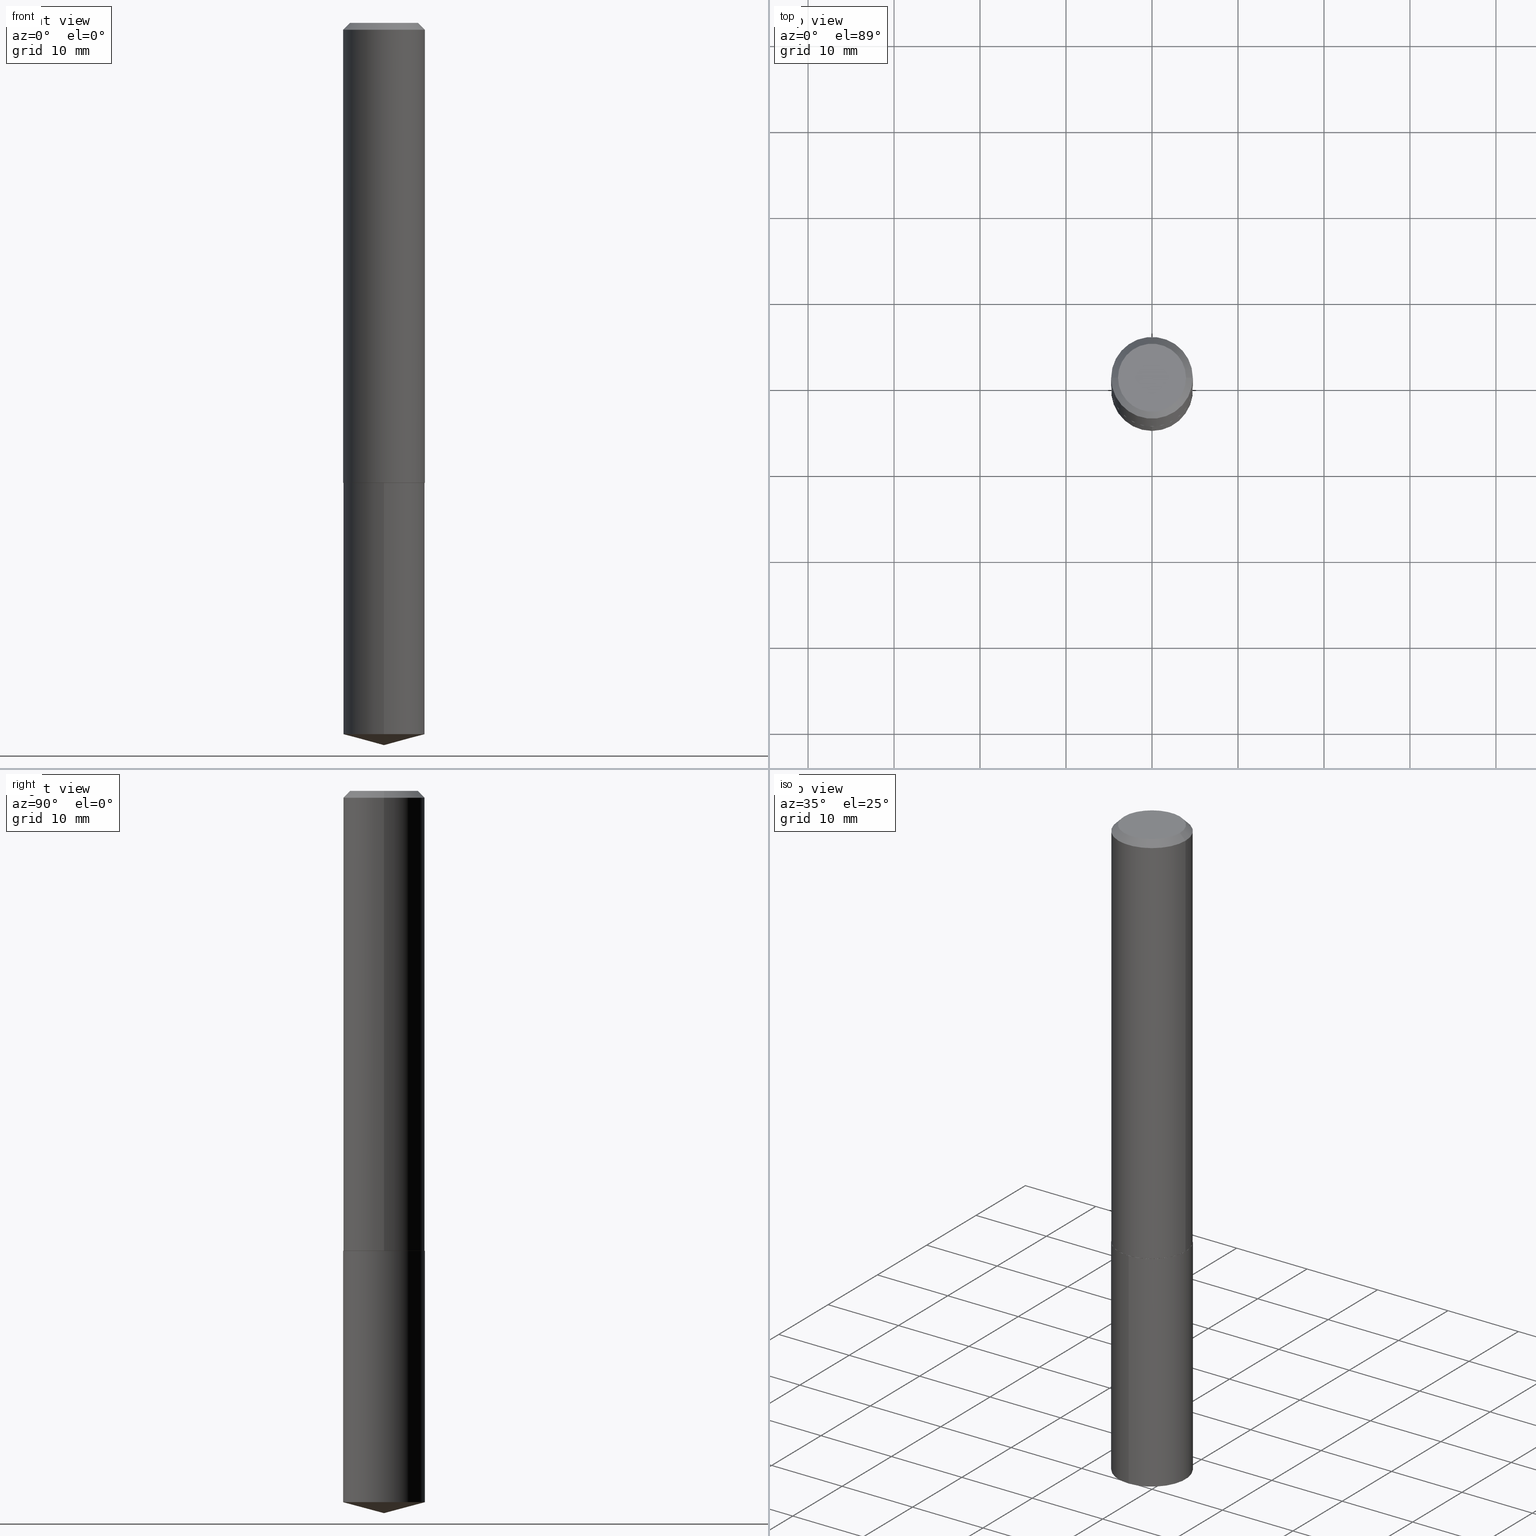
[diagram: canonical four-view strip — front | top / right | iso, engineering-drawing reading convention]
A machine part, canonical four-view strip (front | top / right | iso — engineering-drawing reading convention). The complete STEP part file that produces these views, byte-faithful:
ISO-10303-21;
HEADER;
FILE_DESCRIPTION (( 'STEP AP203' ),
    '1' );
FILE_NAME ('63025.STEP',
    '2024-04-23T07:57:47',
    ( '' ),
    ( '' ),
    'SwSTEP 2.0',
    'SolidWorks 2023',
    '' );
FILE_SCHEMA (( 'CONFIG_CONTROL_DESIGN' ));
ENDSEC;

DATA;
#1 = ORIENTED_EDGE ( 'NONE', *, *, #15, .F. ) ;
#2 = DIRECTION ( 'NONE',  ( -2.445468806185136597E-29, 3.491481338843145583E-15, 1.000000000000000000 ) ) ;
#3 = FACE_OUTER_BOUND ( 'NONE', #171, .T. ) ;
#4 = CARTESIAN_POINT ( 'NONE',  ( 5.150890946467754134E-29, -7.354107144005318601E-15, -2.106300000000000505 ) ) ;
#5 = CIRCLE ( 'NONE', #84, 0.1869999999999999996 ) ;
#6 = APPROVAL_PERSON_ORGANIZATION ( #197, #367, #319 ) ;
#7 = EDGE_CURVE ( 'NONE', #265, #26, #304, .T. ) ;
#8 = CARTESIAN_POINT ( 'NONE',  ( -8.819034608605038246E-28, 1.259139955902573691E-13, 36.06297874015748306 ) ) ;
#9 = CARTESIAN_POINT ( 'NONE',  ( 5.149668212064661332E-29, -7.352361403335897886E-15, -2.105800000000000338 ) ) ;
#10 = DIRECTION ( 'NONE',  ( -2.445468806185136597E-29, 3.491481338843145583E-15, 1.000000000000000000 ) ) ;
#11 = CYLINDRICAL_SURFACE ( 'NONE', #215, 0.1870000000000001383 ) ;
#12 = CONICAL_SURFACE ( 'NONE', #243, 146.9311341562567179, 1.308996938995750092 ) ;
#13 = EDGE_CURVE ( 'NONE', #320, #356, #267, .T. ) ;
#14 =( CONVERSION_BASED_UNIT ( 'INCH', #339 ) LENGTH_UNIT ( ) NAMED_UNIT ( #278 ) );
#15 = EDGE_CURVE ( 'NONE', #320, #315, #5, .T. ) ;
#16 = VECTOR ( 'NONE', #119, 39.37007874015748854 ) ;
#17 = CC_DESIGN_SECURITY_CLASSIFICATION ( #150, ( #31 ) ) ;
#18 = DATE_AND_TIME ( #283, #125 ) ;
#19 = EDGE_LOOP ( 'NONE', ( #29, #349, #233, #21 ) ) ;
#20 = MECHANICAL_CONTEXT ( 'NONE', #190, 'mechanical' ) ;
#21 = ORIENTED_EDGE ( 'NONE', *, *, #88, .F. ) ;
#22 = APPROVAL_PERSON_ORGANIZATION ( #137, #133, #224 ) ;
#23 = EDGE_LOOP ( 'NONE', ( #228, #81, #229, #83 ) ) ;
#24 = CARTESIAN_POINT ( 'NONE',  ( 5.150890946467754134E-29, -7.354107144005318601E-15, -2.106300000000000505 ) ) ;
#25 = DIRECTION ( 'NONE',  ( 2.445468806185136597E-29, -3.491481338843145583E-15, -1.000000000000000000 ) ) ;
#26 = VERTEX_POINT ( 'NONE', #219 ) ;
#27 = APPROVAL_STATUS ( 'not_yet_approved' ) ;
#28 = ADVANCED_FACE ( 'NONE', ( #383 ), #343, .T. ) ;
#29 = ORIENTED_EDGE ( 'NONE', *, *, #357, .T. ) ;
#30 = CIRCLE ( 'NONE', #162, 0.1870000000000002771 ) ;
#31 = PRODUCT_DEFINITION_FORMATION_WITH_SPECIFIED_SOURCE ( 'ANY', '', #170, .NOT_KNOWN. ) ;
#32 = CARTESIAN_POINT ( 'NONE',  ( 5.150890946467754134E-29, -7.354107144005318601E-15, -2.106300000000000505 ) ) ;
#33 = PRODUCT_RELATED_PRODUCT_CATEGORY ( 'detail', '', ( #170 ) ) ;
#34 = ADVANCED_FACE ( 'NONE', ( #209 ), #157, .F. ) ;
#35 = LINE ( 'NONE', #95, #361 ) ;
#36 = CARTESIAN_POINT ( 'NONE',  ( 7.642090019328603538E-31, -1.091087918388490390E-16, -0.03125000000000021511 ) ) ;
#37 = LINE ( 'NONE', #151, #68 ) ;
#38 = AXIS2_PLACEMENT_3D ( 'NONE', #360, #270, #205 ) ;
#39 = LINE ( 'NONE', #152, #256 ) ;
#40 = DIRECTION ( 'NONE',  ( -2.445468806185136597E-29, 3.491481338843145583E-15, 1.000000000000000000 ) ) ;
#41 = APPLICATION_PROTOCOL_DEFINITION ( 'international standard', 'config_control_design', 1994, #190 ) ;
#42 = CONICAL_SURFACE ( 'NONE', #289, 0.1870000000000002771, 0.7853981633977896726 ) ;
#43 = CC_DESIGN_PERSON_AND_ORGANIZATION_ASSIGNMENT ( #381, #253, ( #31 ) ) ;
#44 = CARTESIAN_POINT ( 'NONE',  ( 1.328714915871467217E-15, 0.1869999999999926998, -2.106300000000000949 ) ) ;
#45 = ADVANCED_FACE ( 'NONE', ( #346 ), #145, .T. ) ;
#46 = CARTESIAN_POINT ( 'NONE',  ( -0.1870000000000000551, 1.196705228888483098E-15, -0.03125000000000021511 ) ) ;
#47 = ADVANCED_FACE ( 'NONE', ( #141 ), #259, .T. ) ;
#48 = CARTESIAN_POINT ( 'NONE',  ( -0.1870000000000002771, -6.023646487464508570E-15, -2.105800000000000338 ) ) ;
#49 = AXIS2_PLACEMENT_3D ( 'NONE', #338, #69, #309 ) ;
#50 = VECTOR ( 'NONE', #275, 39.37007874015748143 ) ;
#51 = CALENDAR_DATE ( 2024, 23, 4 ) ;
#52 = ORIENTED_EDGE ( 'NONE', *, *, #302, .T. ) ;
#53 = APPROVAL_DATE_TIME ( #18, #367 ) ;
#54 = CARTESIAN_POINT ( 'NONE',  ( -1.305814020727280331E-15, -0.1870000000000073548, -2.106300000000000061 ) ) ;
#55 = ORIENTED_EDGE ( 'NONE', *, *, #96, .F. ) ;
#56 = VERTEX_POINT ( 'NONE', #79 ) ;
#57 = CIRCLE ( 'NONE', #206, 0.1557499999999999996 ) ;
#58 = AXIS2_PLACEMENT_3D ( 'NONE', #307, #97, #222 ) ;
#59 = VERTEX_POINT ( 'NONE', #54 ) ;
#60 = ADVANCED_FACE ( 'NONE', ( #67 ), #12, .T. ) ;
#61 = COORDINATED_UNIVERSAL_TIME_OFFSET ( 5, 0, .BEHIND. ) ;
#62 = ORIENTED_EDGE ( 'NONE', *, *, #71, .F. ) ;
#63 = DIRECTION ( 'NONE',  ( 1.000000000000000000, -6.982962677686265133E-15, 0.000000000000000000 ) ) ;
#64 = CARTESIAN_POINT ( 'NONE',  ( 7.642090019328603538E-31, -1.091087918388490390E-16, -0.03125000000000021511 ) ) ;
#65 = DIRECTION ( 'NONE',  ( -2.445454567479548311E-29, 3.491501729479964866E-15, 1.000000000000000000 ) ) ;
#66 = CARTESIAN_POINT ( 'NONE',  ( 5.149668212064661332E-29, -7.352361403335897886E-15, -2.105800000000000338 ) ) ;
#67 = FACE_OUTER_BOUND ( 'NONE', #198, .T. ) ;
#68 = VECTOR ( 'NONE', #148, 39.37007874015748143 ) ;
#69 = DIRECTION ( 'NONE',  ( -2.445454567479548311E-29, 3.491501729479964866E-15, 1.000000000000000000 ) ) ;
#70 = EDGE_CURVE ( 'NONE', #382, #265, #235, .T. ) ;
#71 = EDGE_CURVE ( 'NONE', #260, #26, #240, .T. ) ;
#72 = FACE_OUTER_BOUND ( 'NONE', #108, .T. ) ;
#73 = CARTESIAN_POINT ( 'NONE',  ( 7.642090019328603538E-31, -1.091087918388490390E-16, -0.03125000000000021511 ) ) ;
#74 = EDGE_LOOP ( 'NONE', ( #324, #111, #286, #352 ) ) ;
#75 = CARTESIAN_POINT ( 'NONE',  ( -1.305814020727252523E-15, -0.1870000000000114071, -3.256993501015380321 ) ) ;
#76 = DIRECTION ( 'NONE',  ( 1.000000000000000000, 0.000000000000000000, 0.000000000000000000 ) ) ;
#77 = CIRCLE ( 'NONE', #220, 0.1870000000000000551 ) ;
#78 = PERSON_AND_ORGANIZATION ( #223, #322 ) ;
#79 = CARTESIAN_POINT ( 'NONE',  ( -0.1865000000000003322, -6.026295714638618193E-15, -2.106300000000000061 ) ) ;
#80 = ORIENTED_EDGE ( 'NONE', *, *, #180, .T. ) ;
#81 = ORIENTED_EDGE ( 'NONE', *, *, #365, .T. ) ;
#82 = PERSON_AND_ORGANIZATION ( #223, #322 ) ;
#83 = ORIENTED_EDGE ( 'NONE', *, *, #70, .F. ) ;
#84 = AXIS2_PLACEMENT_3D ( 'NONE', #334, #362, #92 ) ;
#85 = DATE_AND_TIME ( #261, #189 ) ;
#86 = ORIENTED_EDGE ( 'NONE', *, *, #325, .F. ) ;
#87 = EDGE_CURVE ( 'NONE', #290, #265, #30, .T. ) ;
#88 = EDGE_CURVE ( 'NONE', #315, #59, #39, .T. ) ;
#89 = PLANE ( 'NONE',  #38 ) ;
#90 = DIRECTION ( 'NONE',  ( 1.000000000000000000, -6.982962677686265133E-15, 0.000000000000000000 ) ) ;
#91 = CARTESIAN_POINT ( 'NONE',  ( -0.1870000000000002771, -6.023646487464508570E-15, -2.105800000000000338 ) ) ;
#92 = DIRECTION ( 'NONE',  ( -6.982962677686266711E-15, -1.000000000000000000, 2.921762560068730595E-15 ) ) ;
#93 = CARTESIAN_POINT ( 'NONE',  ( 5.150890946467754134E-29, -7.354107144005318601E-15, -2.106300000000000505 ) ) ;
#94 = DIRECTION ( 'NONE',  ( -6.982962677686265922E-15, -1.000000000000000000, 3.510303681827599807E-15 ) ) ;
#95 = CARTESIAN_POINT ( 'NONE',  ( 8.087362800111613927E-29, -1.154674536956319132E-14, -3.307100000000000151 ) ) ;
#96 = EDGE_CURVE ( 'NONE', #56, #382, #183, .T. ) ;
#97 = DIRECTION ( 'NONE',  ( -2.445454567479548311E-29, 3.491501729479964866E-15, 1.000000000000000000 ) ) ;
#98 = CARTESIAN_POINT ( 'NONE',  ( 1.328714915871467019E-15, 0.1869999999999886753, -3.256993501015381653 ) ) ;
#99 = LINE ( 'NONE', #46, #167 ) ;
#100 = DIRECTION ( 'NONE',  ( -2.445468806185136597E-29, 3.491481338843145583E-15, 1.000000000000000000 ) ) ;
#101 = FACE_OUTER_BOUND ( 'NONE', #19, .T. ) ;
#102 = APPROVAL_DATE_TIME ( #85, #122 ) ;
#103 = COORDINATED_UNIVERSAL_TIME_OFFSET ( 5, 0, .BEHIND. ) ;
#104 = CIRCLE ( 'NONE', #231, 0.1557499999999999996 ) ;
#105 = ORIENTED_EDGE ( 'NONE', *, *, #87, .T. ) ;
#106 = EDGE_CURVE ( 'NONE', #385, #320, #37, .T. ) ;
#107 = PERSON_AND_ORGANIZATION ( #223, #322 ) ;
#108 = EDGE_LOOP ( 'NONE', ( #258, #130, #199, #166 ) ) ;
#109 = SHAPE_DEFINITION_REPRESENTATION ( #249, #386 ) ;
#110 = ORIENTED_EDGE ( 'NONE', *, *, #182, .T. ) ;
#111 = ORIENTED_EDGE ( 'NONE', *, *, #15, .T. ) ;
#112 = AXIS2_PLACEMENT_3D ( 'NONE', #64, #239, #177 ) ;
#113 = ORIENTED_EDGE ( 'NONE', *, *, #302, .F. ) ;
#114 = DIRECTION ( 'NONE',  ( -6.982962677686266711E-15, -1.000000000000000000, 2.921762560068730595E-15 ) ) ;
#115 = DIRECTION ( 'NONE',  ( -2.445468806185136877E-29, 3.491481338843145188E-15, 1.000000000000000000 ) ) ;
#116 = CARTESIAN_POINT ( 'NONE',  ( 1.328714915871438620E-15, 0.1869999999999926721, -2.106300000000000949 ) ) ;
#117 =( GEOMETRIC_REPRESENTATION_CONTEXT ( 3 ) GLOBAL_UNCERTAINTY_ASSIGNED_CONTEXT ( ( #158 ) ) GLOBAL_UNIT_ASSIGNED_CONTEXT ( ( #14, #281, #218 ) ) REPRESENTATION_CONTEXT ( 'NONE', 'WORKASPACE' ) );
#118 = DIRECTION ( 'NONE',  ( -2.445468806185136597E-29, 3.491481338843145583E-15, 1.000000000000000000 ) ) ;
#119 = DIRECTION ( 'NONE',  ( 0.7071067811865455743, -7.319954787623248157E-15, -0.7071067811865493491 ) ) ;
#120 = ADVANCED_FACE ( 'NONE', ( #272 ), #135, .T. ) ;
#121 = DIRECTION ( 'NONE',  ( -2.445454567479548311E-29, 3.491501729479964866E-15, 1.000000000000000000 ) ) ;
#122 = APPROVAL ( #134, 'UNSPECIFIED' ) ;
#123 = AXIS2_PLACEMENT_3D ( 'NONE', #8, #121, #94 ) ;
#124 = DIRECTION ( 'NONE',  ( -2.445468806185136597E-29, 3.491481338843145583E-15, 1.000000000000000000 ) ) ;
#125 = LOCAL_TIME ( 3, 57, 47.00000000000000000, #103 ) ;
#126 = FACE_OUTER_BOUND ( 'NONE', #355, .T. ) ;
#127 = DESIGN_CONTEXT ( 'detailed design', #211, 'design' ) ;
#128 = LINE ( 'NONE', #48, #50 ) ;
#129 = CARTESIAN_POINT ( 'NONE',  ( 5.149668212064661332E-29, -7.352361403335897886E-15, -2.105800000000000338 ) ) ;
#130 = ORIENTED_EDGE ( 'NONE', *, *, #96, .T. ) ;
#131 = DATE_AND_TIME ( #326, #163 ) ;
#132 = EDGE_LOOP ( 'NONE', ( #226, #80 ) ) ;
#133 = APPROVAL ( #27, 'UNSPECIFIED' ) ;
#134 = APPROVAL_STATUS ( 'not_yet_approved' ) ;
#135 = CONICAL_SURFACE ( 'NONE', #123, 146.9311341562567179, 1.308996938995750092 ) ;
#136 = ORIENTED_EDGE ( 'NONE', *, *, #212, .T. ) ;
#137 = PERSON_AND_ORGANIZATION ( #223, #322 ) ;
#138 = ORIENTED_EDGE ( 'NONE', *, *, #71, .T. ) ;
#139 = EDGE_CURVE ( 'NONE', #356, #59, #175, .T. ) ;
#140 = CALENDAR_DATE ( 2024, 23, 4 ) ;
#141 = FACE_OUTER_BOUND ( 'NONE', #201, .T. ) ;
#142 = ORIENTED_EDGE ( 'NONE', *, *, #351, .T. ) ;
#143 = DATE_AND_TIME ( #51, #195 ) ;
#144 = ORIENTED_EDGE ( 'NONE', *, *, #344, .F. ) ;
#145 = CONICAL_SURFACE ( 'NONE', #380, 0.1870000000000000551, 0.7853981633974456145 ) ;
#146 = DIRECTION ( 'NONE',  ( -2.445454567479548311E-29, 3.491501729479964866E-15, 1.000000000000000000 ) ) ;
#147 = CARTESIAN_POINT ( 'NONE',  ( -0.1870000000000001383, 1.328714915871388330E-15, -9.198408618776680107E-30 ) ) ;
#148 = DIRECTION ( 'NONE',  ( 6.863315791527696626E-15, 0.9659258262890699775, 0.2588190451025145777 ) ) ;
#149 = VECTOR ( 'NONE', #269, 39.37007874015748143 ) ;
#150 = SECURITY_CLASSIFICATION ( '', '', #200 ) ;
#151 = CARTESIAN_POINT ( 'NONE',  ( 8.087423308053859234E-29, -1.154665947196652675E-14, -3.307100000000000151 ) ) ;
#152 = CARTESIAN_POINT ( 'NONE',  ( -1.305814020727280331E-15, -0.1870000000000073548, -2.106300000000000061 ) ) ;
#153 = CYLINDRICAL_SURFACE ( 'NONE', #49, 0.1869999999999999996 ) ;
#154 = AXIS2_PLACEMENT_3D ( 'NONE', #66, #40, #247 ) ;
#155 = DIRECTION ( 'NONE',  ( -2.445468806185136597E-29, 3.491481338843145583E-15, 1.000000000000000000 ) ) ;
#156 = DIRECTION ( 'NONE',  ( -2.445468806185136597E-29, 3.491481338843145583E-15, 1.000000000000000000 ) ) ;
#157 = PLANE ( 'NONE',  #238 ) ;
#158 = UNCERTAINTY_MEASURE_WITH_UNIT (LENGTH_MEASURE( 1.000000000000000082E-05 ), #14, 'distance_accuracy_value', 'NONE');
#159 = DIRECTION ( 'NONE',  ( 2.438088387897960049E-29, -3.491481338843145188E-15, -1.000000000000000000 ) ) ;
#160 = ORIENTED_EDGE ( 'NONE', *, *, #182, .F. ) ;
#161 = CLOSED_SHELL ( 'NONE', ( #308, #60, #120, #291, #34 ) ) ;
#162 = AXIS2_PLACEMENT_3D ( 'NONE', #181, #366, #63 ) ;
#163 = LOCAL_TIME ( 3, 57, 47.00000000000000000, #321 ) ;
#164 = DATE_TIME_ROLE ( 'creation_date' ) ;
#165 = ORIENTED_EDGE ( 'NONE', *, *, #306, .T. ) ;
#166 = ORIENTED_EDGE ( 'NONE', *, *, #87, .F. ) ;
#167 = VECTOR ( 'NONE', #216, 39.37007874015748854 ) ;
#168 = ORIENTED_EDGE ( 'NONE', *, *, #285, .F. ) ;
#169 = APPROVAL_PERSON_ORGANIZATION ( #78, #122, #342 ) ;
#170 = PRODUCT ( '63025', '63025', '', ( #20 ) ) ;
#171 = EDGE_LOOP ( 'NONE', ( #62, #86, #288, #142 ) ) ;
#172 = PERSON_AND_ORGANIZATION_ROLE ( 'classification_officer' ) ;
#173 = ORIENTED_EDGE ( 'NONE', *, *, #180, .F. ) ;
#174 = CARTESIAN_POINT ( 'NONE',  ( 5.150890946467754134E-29, -7.354107144005317023E-15, -2.106300000000000061 ) ) ;
#175 = CIRCLE ( 'NONE', #225, 0.1869999999999999996 ) ;
#176 = CIRCLE ( 'NONE', #58, 0.1869999999999999996 ) ;
#177 = DIRECTION ( 'NONE',  ( -1.000000000000000000, 6.982962677686266711E-15, 0.000000000000000000 ) ) ;
#178 = CC_DESIGN_DATE_AND_TIME_ASSIGNMENT ( #143, #164, ( #263 ) ) ;
#179 = DIRECTION ( 'NONE',  ( -6.982962677686266711E-15, -1.000000000000000000, 2.921762560068730595E-15 ) ) ;
#180 = EDGE_CURVE ( 'NONE', #260, #232, #104, .T. ) ;
#181 = CARTESIAN_POINT ( 'NONE',  ( 5.149668212064661332E-29, -7.352361403335897886E-15, -2.105800000000000338 ) ) ;
#182 = EDGE_CURVE ( 'NONE', #385, #315, #35, .T. ) ;
#183 = CIRCLE ( 'NONE', #194, 0.1865000000000003322 ) ;
#184 = CC_DESIGN_APPROVAL ( #133, ( #150 ) ) ;
#185 = CARTESIAN_POINT ( 'NONE',  ( 0.1870000000000002771, -8.658175424063231465E-15, -2.105800000000000338 ) ) ;
#186 = DIRECTION ( 'NONE',  ( 1.000000000000000000, -6.982962677686266711E-15, 0.000000000000000000 ) ) ;
#187 = AXIS2_PLACEMENT_3D ( 'NONE', #32, #146, #266 ) ;
#188 = DIRECTION ( 'NONE',  ( -1.000000000000000000, 6.982962677686265922E-15, -4.876176775795935793E-29 ) ) ;
#189 = LOCAL_TIME ( 3, 57, 47.00000000000000000, #292 ) ;
#190 = APPLICATION_CONTEXT ( 'configuration controlled 3d designs of mechanical parts and assemblies' ) ;
#191 = FACE_OUTER_BOUND ( 'NONE', #132, .T. ) ;
#192 = PLANE ( 'NONE',  #297 ) ;
#193 = PERSON_AND_ORGANIZATION_ROLE ( 'design_owner' ) ;
#194 = AXIS2_PLACEMENT_3D ( 'NONE', #174, #2, #210 ) ;
#195 = LOCAL_TIME ( 3, 57, 47.00000000000000000, #202 ) ;
#196 = ORIENTED_EDGE ( 'NONE', *, *, #374, .F. ) ;
#197 = PERSON_AND_ORGANIZATION ( #223, #322 ) ;
#198 = EDGE_LOOP ( 'NONE', ( #160, #254, #295 ) ) ;
#199 = ORIENTED_EDGE ( 'NONE', *, *, #70, .T. ) ;
#200 = SECURITY_CLASSIFICATION_LEVEL ( 'unclassified' ) ;
#201 = EDGE_LOOP ( 'NONE', ( #168, #105, #279, #257 ) ) ;
#202 = COORDINATED_UNIVERSAL_TIME_OFFSET ( 5, 0, .BEHIND. ) ;
#203 = VERTEX_POINT ( 'NONE', #296 ) ;
#204 = CC_DESIGN_PERSON_AND_ORGANIZATION_ASSIGNMENT ( #227, #255, ( #263 ) ) ;
#205 = DIRECTION ( 'NONE',  ( 1.000000000000000000, -6.982962677686265922E-15, 4.876176775795935793E-29 ) ) ;
#206 = AXIS2_PLACEMENT_3D ( 'NONE', #277, #250, #370 ) ;
#207 = CC_DESIGN_APPROVAL ( #122, ( #263 ) ) ;
#208 = FACE_OUTER_BOUND ( 'NONE', #74, .T. ) ;
#209 = FACE_OUTER_BOUND ( 'NONE', #293, .T. ) ;
#210 = DIRECTION ( 'NONE',  ( 1.000000000000000000, -6.982962677686265922E-15, 0.000000000000000000 ) ) ;
#211 = APPLICATION_CONTEXT ( 'configuration controlled 3d designs of mechanical parts and assemblies' ) ;
#212 = EDGE_CURVE ( 'NONE', #59, #356, #248, .T. ) ;
#213 = DIRECTION ( 'NONE',  ( -2.445454567479548311E-29, 3.491501729479964866E-15, 1.000000000000000000 ) ) ;
#214 = AXIS2_PLACEMENT_3D ( 'NONE', #93, #65, #179 ) ;
#215 = AXIS2_PLACEMENT_3D ( 'NONE', #252, #156, #373 ) ;
#216 = DIRECTION ( 'NONE',  ( -0.7071067811865455743, 2.468850131082236945E-15, -0.7071067811865493491 ) ) ;
#217 = CARTESIAN_POINT ( 'NONE',  ( 5.150890946467754134E-29, -7.354107144005317023E-15, -2.106300000000000061 ) ) ;
#218 =( NAMED_UNIT ( * ) SI_UNIT ( $, .STERADIAN. ) SOLID_ANGLE_UNIT ( ) );
#219 = CARTESIAN_POINT ( 'NONE',  ( 0.1870000000000000551, -1.414922812566181102E-15, -0.03125000000000021511 ) ) ;
#220 = AXIS2_PLACEMENT_3D ( 'NONE', #73, #372, #186 ) ;
#221 = AXIS2_PLACEMENT_3D ( 'NONE', #9, #100, #90 ) ;
#222 = DIRECTION ( 'NONE',  ( -6.982962677686266711E-15, -1.000000000000000000, 2.921762560068730595E-15 ) ) ;
#223 = PERSON ( 'UNSPECIFIED', 'UNSPECIFIED', 'UNSPECIFIED', ('UNSPECIFIED'), ('UNSPECIFIED'), ('UNSPECIFIED') ) ;
#224 = APPROVAL_ROLE ( '' ) ;
#225 = AXIS2_PLACEMENT_3D ( 'NONE', #4, #213, #114 ) ;
#226 = ORIENTED_EDGE ( 'NONE', *, *, #325, .T. ) ;
#227 = PERSON_AND_ORGANIZATION ( #223, #322 ) ;
#228 = ORIENTED_EDGE ( 'NONE', *, *, #374, .T. ) ;
#229 = ORIENTED_EDGE ( 'NONE', *, *, #306, .F. ) ;
#230 = DIRECTION ( 'NONE',  ( 0.000000000000000000, 0.000000000000000000, 1.000000000000000000 ) ) ;
#231 = AXIS2_PLACEMENT_3D ( 'NONE', #273, #10, #242 ) ;
#232 = VERTEX_POINT ( 'NONE', #358 ) ;
#233 = ORIENTED_EDGE ( 'NONE', *, *, #212, .F. ) ;
#234 = CC_DESIGN_DATE_AND_TIME_ASSIGNMENT ( #131, #377, ( #150 ) ) ;
#235 = LINE ( 'NONE', #185, #337 ) ;
#236 = FACE_OUTER_BOUND ( 'NONE', #379, .T. ) ;
#237 = DIRECTION ( 'NONE',  ( -2.445454567479548591E-29, 3.491501729479964471E-15, 1.000000000000000000 ) ) ;
#238 = AXIS2_PLACEMENT_3D ( 'NONE', #24, #305, #311 ) ;
#239 = DIRECTION ( 'NONE',  ( 2.445468806185136597E-29, -3.491481338843145583E-15, -1.000000000000000000 ) ) ;
#240 = LINE ( 'NONE', #299, #16 ) ;
#241 = MANIFOLD_SOLID_BREP ( 'Body-Move/Copy2[1]', #161 ) ;
#242 = DIRECTION ( 'NONE',  ( 1.000000000000000000, -6.982962677686265922E-15, 4.876150422495883236E-29 ) ) ;
#243 = AXIS2_PLACEMENT_3D ( 'NONE', #336, #368, #328 ) ;
#244 = CARTESIAN_POINT ( 'NONE',  ( -8.834764860432524555E-48, 1.261370276539608758E-33, 3.612708057484696673E-19 ) ) ;
#245 = ADVANCED_FACE ( 'NONE', ( #236 ), #89, .F. ) ;
#246 = CARTESIAN_POINT ( 'NONE',  ( 8.087362800111615048E-29, -1.154674536956319132E-14, -3.307100000000000151 ) ) ;
#247 = DIRECTION ( 'NONE',  ( 1.000000000000000000, -6.982962677686265133E-15, 0.000000000000000000 ) ) ;
#248 = CIRCLE ( 'NONE', #187, 0.1869999999999999996 ) ;
#249 = PRODUCT_DEFINITION_SHAPE ( 'NONE', 'NONE',  #263 ) ;
#250 = DIRECTION ( 'NONE',  ( -2.445468806185136597E-29, 3.491481338843145583E-15, 1.000000000000000000 ) ) ;
#251 = CC_DESIGN_PERSON_AND_ORGANIZATION_ASSIGNMENT ( #294, #193, ( #170 ) ) ;
#252 = CARTESIAN_POINT ( 'NONE',  ( 0.000000000000000000, 0.000000000000000000, 0.000000000000000000 ) ) ;
#253 = PERSON_AND_ORGANIZATION_ROLE ( 'creator' ) ;
#254 = ORIENTED_EDGE ( 'NONE', *, *, #106, .T. ) ;
#255 = PERSON_AND_ORGANIZATION_ROLE ( 'creator' ) ;
#256 = VECTOR ( 'NONE', #300, 39.37007874015748143 ) ;
#257 = ORIENTED_EDGE ( 'NONE', *, *, #351, .F. ) ;
#258 = ORIENTED_EDGE ( 'NONE', *, *, #365, .F. ) ;
#259 = CYLINDRICAL_SURFACE ( 'NONE', #371, 0.1870000000000001383 ) ;
#260 = VERTEX_POINT ( 'NONE', #268 ) ;
#261 = CALENDAR_DATE ( 2024, 23, 4 ) ;
#262 = VECTOR ( 'NONE', #237, 39.37007874015748143 ) ;
#263 = PRODUCT_DEFINITION ( 'UNKNOWN', '', #31, #127 ) ;
#264 = CIRCLE ( 'NONE', #340, 0.1865000000000003322 ) ;
#265 = VERTEX_POINT ( 'NONE', #330 ) ;
#266 = DIRECTION ( 'NONE',  ( -6.982962677686266711E-15, -1.000000000000000000, 2.921762560068730595E-15 ) ) ;
#267 = LINE ( 'NONE', #116, #262 ) ;
#268 = CARTESIAN_POINT ( 'NONE',  ( 0.1557499999999999996, -1.230272240287521027E-15, 7.225416115050436478E-19 ) ) ;
#269 = DIRECTION ( 'NONE',  ( -2.445468806185136877E-29, 3.491481338843145188E-15, 1.000000000000000000 ) ) ;
#270 = DIRECTION ( 'NONE',  ( -2.438088387897960049E-29, 3.491481338843145188E-15, 1.000000000000000000 ) ) ;
#271 = AXIS2_PLACEMENT_3D ( 'NONE', #314, #230, #76 ) ;
#272 = FACE_OUTER_BOUND ( 'NONE', #327, .T. ) ;
#273 = CARTESIAN_POINT ( 'NONE',  ( -1.766952972086504911E-47, 2.522740553079217515E-33, 7.225416114969393346E-19 ) ) ;
#274 = ADVANCED_FACE ( 'NONE', ( #3 ), #301, .T. ) ;
#275 = DIRECTION ( 'NONE',  ( -0.7071067811867889352, 7.493145998871226640E-15, 0.7071067811863060992 ) ) ;
#276 = CIRCLE ( 'NONE', #389, 0.1870000000000000551 ) ;
#277 = CARTESIAN_POINT ( 'NONE',  ( -1.766952972086504911E-47, 2.522740553079217515E-33, 7.225416114969393346E-19 ) ) ;
#278 = DIMENSIONAL_EXPONENTS ( 1.000000000000000000, 0.000000000000000000, 0.000000000000000000, 0.000000000000000000, 0.000000000000000000, 0.000000000000000000, 0.000000000000000000 ) ;
#279 = ORIENTED_EDGE ( 'NONE', *, *, #7, .T. ) ;
#280 = VECTOR ( 'NONE', #115, 39.37007874015748143 ) ;
#281 =( NAMED_UNIT ( * ) PLANE_ANGLE_UNIT ( ) SI_UNIT ( $, .RADIAN. ) );
#282 = EDGE_LOOP ( 'NONE', ( #173, #138, #52, #144 ) ) ;
#283 = CALENDAR_DATE ( 2024, 23, 4 ) ;
#284 = DIRECTION ( 'NONE',  ( -2.445468806185136597E-29, 3.491481338843145583E-15, 1.000000000000000000 ) ) ;
#285 = EDGE_CURVE ( 'NONE', #290, #203, #298, .T. ) ;
#286 = ORIENTED_EDGE ( 'NONE', *, *, #88, .T. ) ;
#287 = CC_DESIGN_PERSON_AND_ORGANIZATION_ASSIGNMENT ( #107, #172, ( #150 ) ) ;
#288 = ORIENTED_EDGE ( 'NONE', *, *, #344, .T. ) ;
#289 = AXIS2_PLACEMENT_3D ( 'NONE', #129, #155, #312 ) ;
#290 = VERTEX_POINT ( 'NONE', #91 ) ;
#291 = ADVANCED_FACE ( 'NONE', ( #208 ), #332, .T. ) ;
#292 = COORDINATED_UNIVERSAL_TIME_OFFSET ( 5, 0, .BEHIND. ) ;
#293 = EDGE_LOOP ( 'NONE', ( #136, #347 ) ) ;
#294 = PERSON_AND_ORGANIZATION ( #223, #322 ) ;
#295 = ORIENTED_EDGE ( 'NONE', *, *, #357, .F. ) ;
#296 = CARTESIAN_POINT ( 'NONE',  ( -0.1870000000000000551, -2.402020181715984177E-15, -0.03125000000000021511 ) ) ;
#297 = AXIS2_PLACEMENT_3D ( 'NONE', #244, #159, #188 ) ;
#298 = LINE ( 'NONE', #147, #280 ) ;
#299 = CARTESIAN_POINT ( 'NONE',  ( 0.1870000000000000551, -1.392021917422125758E-15, -0.03125000000000021511 ) ) ;
#300 = DIRECTION ( 'NONE',  ( -2.445454567479548591E-29, 3.491501729479964471E-15, 1.000000000000000000 ) ) ;
#301 = CONICAL_SURFACE ( 'NONE', #112, 0.1870000000000000551, 0.7853981633974456145 ) ;
#302 = EDGE_CURVE ( 'NONE', #26, #203, #276, .T. ) ;
#303 = DIRECTION ( 'NONE',  ( 0.7071067811867889352, -2.468850131084785360E-15, 0.7071067811863060992 ) ) ;
#304 = LINE ( 'NONE', #329, #149 ) ;
#305 = DIRECTION ( 'NONE',  ( 2.445454567479548311E-29, -3.491501729479964471E-15, -1.000000000000000000 ) ) ;
#306 = EDGE_CURVE ( 'NONE', #265, #290, #331, .T. ) ;
#307 = CARTESIAN_POINT ( 'NONE',  ( 7.964859624294848919E-29, -1.137175549290187458E-14, -3.256993501015380765 ) ) ;
#308 = ADVANCED_FACE ( 'NONE', ( #101 ), #153, .T. ) ;
#309 = DIRECTION ( 'NONE',  ( -6.982962677686266711E-15, -1.000000000000000000, 2.921762560068730595E-15 ) ) ;
#310 = CARTESIAN_POINT ( 'NONE',  ( 0.1865000000000003322, -8.656429683393809173E-15, -2.106300000000000061 ) ) ;
#311 = DIRECTION ( 'NONE',  ( 6.982962677686265922E-15, 1.000000000000000000, -3.491501729479964471E-15 ) ) ;
#312 = DIRECTION ( 'NONE',  ( 1.000000000000000000, -6.982962677686265133E-15, 0.000000000000000000 ) ) ;
#313 = CC_DESIGN_APPROVAL ( #367, ( #31 ) ) ;
#314 = CARTESIAN_POINT ( 'NONE',  ( 0.000000000000000000, 0.000000000000000000, 0.000000000000000000 ) ) ;
#315 = VERTEX_POINT ( 'NONE', #75 ) ;
#316 = APPROVAL_DATE_TIME ( #345, #133 ) ;
#317 = ADVANCED_FACE ( 'NONE', ( #72 ), #42, .T. ) ;
#318 = ORIENTED_EDGE ( 'NONE', *, *, #7, .F. ) ;
#319 = APPROVAL_ROLE ( '' ) ;
#320 = VERTEX_POINT ( 'NONE', #98 ) ;
#321 = COORDINATED_UNIVERSAL_TIME_OFFSET ( 5, 0, .BEHIND. ) ;
#322 = ORGANIZATION ( 'UNSPECIFIED', 'UNSPECIFIED', '' ) ;
#323 = CARTESIAN_POINT ( 'NONE',  ( 7.642090019328603538E-31, -1.091087918388490390E-16, -0.03125000000000021511 ) ) ;
#324 = ORIENTED_EDGE ( 'NONE', *, *, #13, .F. ) ;
#325 = EDGE_CURVE ( 'NONE', #232, #260, #57, .T. ) ;
#326 = CALENDAR_DATE ( 2024, 23, 4 ) ;
#327 = EDGE_LOOP ( 'NONE', ( #375, #110, #1 ) ) ;
#328 = DIRECTION ( 'NONE',  ( -6.982962677686265922E-15, -1.000000000000000000, 3.510303681827599807E-15 ) ) ;
#329 = CARTESIAN_POINT ( 'NONE',  ( 0.1870000000000001383, -1.305814020727332790E-15, 9.118450570738406715E-30 ) ) ;
#330 = CARTESIAN_POINT ( 'NONE',  ( 0.1870000000000002771, -8.658175424063231465E-15, -2.105800000000000338 ) ) ;
#331 = CIRCLE ( 'NONE', #154, 0.1870000000000002771 ) ;
#332 = CYLINDRICAL_SURFACE ( 'NONE', #214, 0.1869999999999999996 ) ;
#333 = DIRECTION ( 'NONE',  ( 1.000000000000000000, -6.982962677686266711E-15, 0.000000000000000000 ) ) ;
#334 = CARTESIAN_POINT ( 'NONE',  ( 7.964859624294848919E-29, -1.137175549290187458E-14, -3.256993501015380765 ) ) ;
#335 = ADVANCED_FACE ( 'NONE', ( #126 ), #11, .T. ) ;
#336 = CARTESIAN_POINT ( 'NONE',  ( -8.819034608605038246E-28, 1.259139955902573691E-13, 36.06297874015748306 ) ) ;
#337 = VECTOR ( 'NONE', #303, 39.37007874015748143 ) ;
#338 = CARTESIAN_POINT ( 'NONE',  ( 5.150890946467754134E-29, -7.354107144005318601E-15, -2.106300000000000505 ) ) ;
#339 = LENGTH_MEASURE_WITH_UNIT ( LENGTH_MEASURE( 0.02539999999999999897 ), #369 );
#340 = AXIS2_PLACEMENT_3D ( 'NONE', #217, #124, #341 ) ;
#341 = DIRECTION ( 'NONE',  ( 1.000000000000000000, -6.982962677686265922E-15, 0.000000000000000000 ) ) ;
#342 = APPROVAL_ROLE ( '' ) ;
#343 = CONICAL_SURFACE ( 'NONE', #221, 0.1870000000000002771, 0.7853981633977896726 ) ;
#344 = EDGE_CURVE ( 'NONE', #232, #203, #99, .T. ) ;
#345 = DATE_AND_TIME ( #140, #390 ) ;
#346 = FACE_OUTER_BOUND ( 'NONE', #282, .T. ) ;
#347 = ORIENTED_EDGE ( 'NONE', *, *, #139, .T. ) ;
#348 = PERSON_AND_ORGANIZATION_ROLE ( 'design_supplier' ) ;
#349 = ORIENTED_EDGE ( 'NONE', *, *, #13, .T. ) ;
#350 = APPLICATION_PROTOCOL_DEFINITION ( 'international standard', 'config_control_design', 1994, #211 ) ;
#351 = EDGE_CURVE ( 'NONE', #203, #26, #77, .T. ) ;
#352 = ORIENTED_EDGE ( 'NONE', *, *, #139, .F. ) ;
#353 = APPROVAL_STATUS ( 'not_yet_approved' ) ;
#354 = CLOSED_SHELL ( 'NONE', ( #45, #335, #28, #245, #317, #47, #274, #376 ) ) ;
#355 = EDGE_LOOP ( 'NONE', ( #165, #388, #113, #318 ) ) ;
#356 = VERTEX_POINT ( 'NONE', #44 ) ;
#357 = EDGE_CURVE ( 'NONE', #315, #320, #176, .T. ) ;
#358 = CARTESIAN_POINT ( 'NONE',  ( -0.1557499999999999996, 1.142150832969059533E-15, 7.225416114891427850E-19 ) ) ;
#359 = CC_DESIGN_PERSON_AND_ORGANIZATION_ASSIGNMENT ( #82, #348, ( #31 ) ) ;
#360 = CARTESIAN_POINT ( 'NONE',  ( 5.150890946467754134E-29, -7.354107144005318601E-15, -2.106300000000000505 ) ) ;
#361 = VECTOR ( 'NONE', #364, 39.37007874015748854 ) ;
#362 = DIRECTION ( 'NONE',  ( -2.445454567479548311E-29, 3.491501729479964866E-15, 1.000000000000000000 ) ) ;
#363 = MANIFOLD_SOLID_BREP ( 'Body-Move/Copy2[2]', #354 ) ;
#364 = DIRECTION ( 'NONE',  ( -6.745023994389841499E-15, -0.9659258262890679791, 0.2588190451025212946 ) ) ;
#365 = EDGE_CURVE ( 'NONE', #56, #290, #128, .T. ) ;
#366 = DIRECTION ( 'NONE',  ( -2.445468806185136597E-29, 3.491481338843145583E-15, 1.000000000000000000 ) ) ;
#367 = APPROVAL ( #353, 'UNSPECIFIED' ) ;
#368 = DIRECTION ( 'NONE',  ( -2.445454567479548311E-29, 3.491501729479964866E-15, 1.000000000000000000 ) ) ;
#369 =( LENGTH_UNIT ( ) NAMED_UNIT ( * ) SI_UNIT ( $, .METRE. ) );
#370 = DIRECTION ( 'NONE',  ( 1.000000000000000000, -6.982962677686265922E-15, 4.876150422495883236E-29 ) ) ;
#371 = AXIS2_PLACEMENT_3D ( 'NONE', #387, #284, #378 ) ;
#372 = DIRECTION ( 'NONE',  ( -2.445468806185136597E-29, 3.491481338843145583E-15, 1.000000000000000000 ) ) ;
#373 = DIRECTION ( 'NONE',  ( 1.000000000000000000, -6.982962677686266711E-15, 4.876176775795935793E-29 ) ) ;
#374 = EDGE_CURVE ( 'NONE', #382, #56, #264, .T. ) ;
#375 = ORIENTED_EDGE ( 'NONE', *, *, #106, .F. ) ;
#376 = ADVANCED_FACE ( 'NONE', ( #191 ), #192, .F. ) ;
#377 = DATE_TIME_ROLE ( 'classification_date' ) ;
#378 = DIRECTION ( 'NONE',  ( 1.000000000000000000, -6.982962677686266711E-15, 4.876176775795935793E-29 ) ) ;
#379 = EDGE_LOOP ( 'NONE', ( #196, #55 ) ) ;
#380 = AXIS2_PLACEMENT_3D ( 'NONE', #323, #25, #384 ) ;
#381 = PERSON_AND_ORGANIZATION ( #223, #322 ) ;
#382 = VERTEX_POINT ( 'NONE', #310 ) ;
#383 = FACE_OUTER_BOUND ( 'NONE', #23, .T. ) ;
#384 = DIRECTION ( 'NONE',  ( -1.000000000000000000, 6.982962677686266711E-15, 0.000000000000000000 ) ) ;
#385 = VERTEX_POINT ( 'NONE', #246 ) ;
#386 = ADVANCED_BREP_SHAPE_REPRESENTATION ( '63025', ( #241, #363, #271 ), #117 ) ;
#387 = CARTESIAN_POINT ( 'NONE',  ( 0.000000000000000000, 0.000000000000000000, 0.000000000000000000 ) ) ;
#388 = ORIENTED_EDGE ( 'NONE', *, *, #285, .T. ) ;
#389 = AXIS2_PLACEMENT_3D ( 'NONE', #36, #118, #333 ) ;
#390 = LOCAL_TIME ( 3, 57, 47.00000000000000000, #61 ) ;
ENDSEC;
END-ISO-10303-21;
